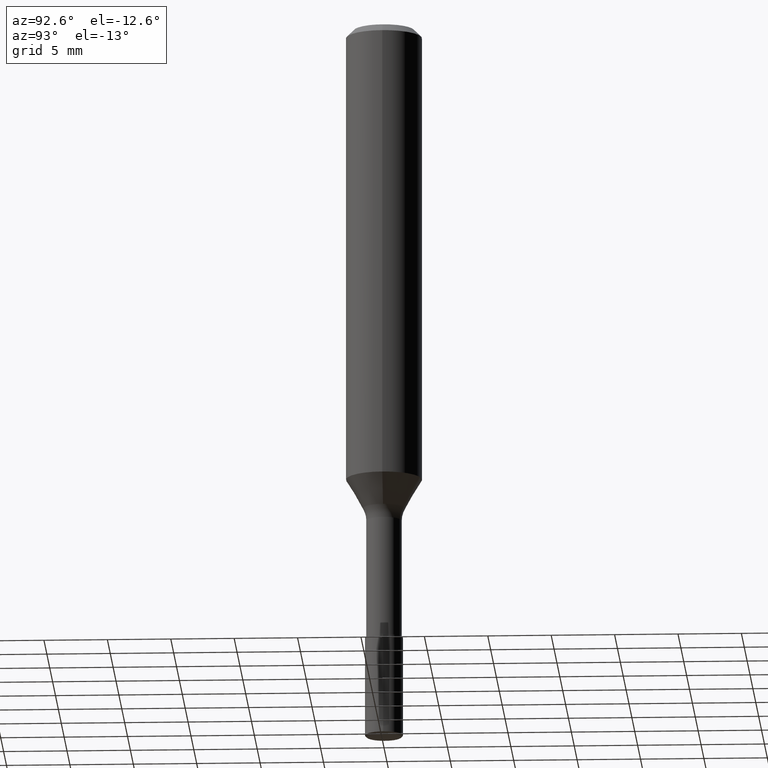
[diagram: clean part render]
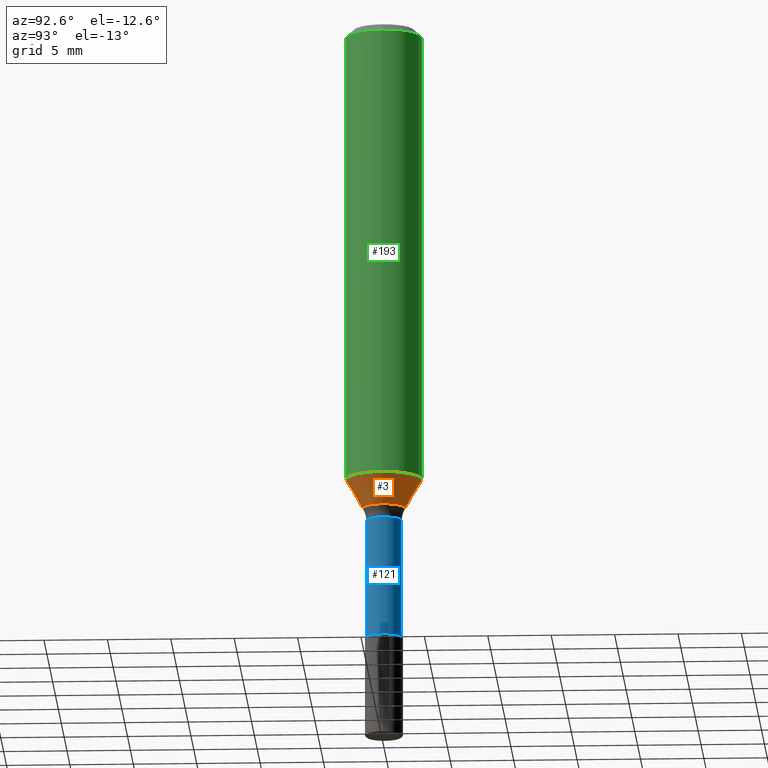
[diagram: same view with three faces highlighted in distinct colors, each labeled with its STEP entity id]
A machine part, auxiliary view with three faces highlighted in distinct colors.
Their STEP definitions:

[orange] entity #3 — the highlighted conical surface has half-angle 30 deg.
#3 = ADVANCED_FACE ( 'NONE', ( #23, #49 ), #6, .T. ) ;
#4 = VERTEX_POINT ( 'NONE', #155 ) ;
#5 = DIRECTION ( 'NONE',  ( 6.982962677686266711E-15, 0.0000000000000000000, 1.000000000000000000 ) ) ;
#6 = CONICAL_SURFACE ( 'NONE', #217, 1.667949192431122274, 0.5235987755983003700 ) ;
#16 = ORIENTED_EDGE ( 'NONE', *, *, #232, .F. ) ;
#19 = CIRCLE ( 'NONE', #263, 1.667949192431122274 ) ;
#23 = FACE_OUTER_BOUND ( 'NONE', #83, .T. ) ;
#49 = FACE_BOUND ( 'NONE', #135, .T. ) ;
#83 = EDGE_LOOP ( 'NONE', ( #112 ) ) ;
#108 = EDGE_CURVE ( 'NONE', #4, #4, #197, .T. ) ;
#111 = DIRECTION ( 'NONE',  ( 6.982962677686266711E-15, 0.0000000000000000000, 1.000000000000000000 ) ) ;
#112 = ORIENTED_EDGE ( 'NONE', *, *, #108, .F. ) ;
#135 = EDGE_LOOP ( 'NONE', ( #16 ) ) ;
#137 = CARTESIAN_POINT ( 'NONE',  ( -2.690947401726035711E-13, 0.0000000000000000000, -38.53589838486225005 ) ) ;
#138 = VERTEX_POINT ( 'NONE', #175 ) ;
#155 = CARTESIAN_POINT ( 'NONE',  ( 2.999999999999764633, 0.0000000000000000000, -36.22871870788980431 ) ) ;
#156 = DIRECTION ( 'NONE',  ( -6.982962677686266711E-15, 0.0000000000000000000, -1.000000000000000000 ) ) ;
#175 = CARTESIAN_POINT ( 'NONE',  ( -1.667949192431391392, 0.0000000000000000000, -38.53589838486223584 ) ) ;
#197 = CIRCLE ( 'NONE', #240, 3.000000000000017319 ) ;
#206 = DIRECTION ( 'NONE',  ( 1.000000000000000000, 0.0000000000000000000, -6.938893903907188146E-15 ) ) ;
#217 = AXIS2_PLACEMENT_3D ( 'NONE', #244, #5, #225 ) ;
#225 = DIRECTION ( 'NONE',  ( 1.000000000000000000, 0.0000000000000000000, -8.320270108220061374E-15 ) ) ;
#229 = CARTESIAN_POINT ( 'NONE',  ( -2.529837905975886012E-13, 0.0000000000000000000, -36.22871870788978299 ) ) ;
#232 = EDGE_CURVE ( 'NONE', #138, #138, #19, .T. ) ;
#240 = AXIS2_PLACEMENT_3D ( 'NONE', #229, #111, #206 ) ;
#244 = CARTESIAN_POINT ( 'NONE',  ( -2.690947401726035711E-13, 0.0000000000000000000, -38.53589838486225005 ) ) ;
#260 = DIRECTION ( 'NONE',  ( -1.000000000000000000, 0.0000000000000000000, 8.320270108220061374E-15 ) ) ;
#263 = AXIS2_PLACEMENT_3D ( 'NONE', #137, #156, #260 ) ;

[blue] entity #121 — the highlighted cylindrical surface (bore or boss wall) has radius 1.4 mm, axis along (-0, 0, -1).
#34 = FACE_OUTER_BOUND ( 'NONE', #151, .T. ) ;
#36 = CYLINDRICAL_SURFACE ( 'NONE', #72, 1.400000000000000133 ) ;
#57 = AXIS2_PLACEMENT_3D ( 'NONE', #203, #60, #146 ) ;
#60 = DIRECTION ( 'NONE',  ( -6.982962677686266711E-15, 0.0000000000000000000, -1.000000000000000000 ) ) ;
#62 = FACE_OUTER_BOUND ( 'NONE', #86, .T. ) ;
#63 = ORIENTED_EDGE ( 'NONE', *, *, #262, .F. ) ;
#72 = AXIS2_PLACEMENT_3D ( 'NONE', #162, #251, #166 ) ;
#86 = EDGE_LOOP ( 'NONE', ( #63 ) ) ;
#95 = AXIS2_PLACEMENT_3D ( 'NONE', #178, #243, #124 ) ;
#109 = ORIENTED_EDGE ( 'NONE', *, *, #168, .T. ) ;
#121 = ADVANCED_FACE ( 'NONE', ( #34, #62 ), #36, .T. ) ;
#124 = DIRECTION ( 'NONE',  ( -1.000000000000000000, 0.0000000000000000000, 4.956352788505163465E-15 ) ) ;
#140 = VERTEX_POINT ( 'NONE', #196 ) ;
#146 = DIRECTION ( 'NONE',  ( -1.000000000000000000, 0.0000000000000000000, 4.956352788505162676E-15 ) ) ;
#151 = EDGE_LOOP ( 'NONE', ( #109 ) ) ;
#162 = CARTESIAN_POINT ( 'NONE',  ( 0.0000000000000000000, 0.0000000000000000000, 0.0000000000000000000 ) ) ;
#166 = DIRECTION ( 'NONE',  ( -1.000000000000000000, 0.0000000000000000000, 6.982962677686267499E-15 ) ) ;
#168 = EDGE_CURVE ( 'NONE', #239, #239, #188, .T. ) ;
#174 = CARTESIAN_POINT ( 'NONE',  ( -1.400000000000276135, 0.0000000000000000000, -39.53589838486224295 ) ) ;
#178 = CARTESIAN_POINT ( 'NONE',  ( -3.421651712066269931E-13, 0.0000000000000000000, -48.99999999999998579 ) ) ;
#188 = CIRCLE ( 'NONE', #57, 1.400000000000000133 ) ;
#196 = CARTESIAN_POINT ( 'NONE',  ( -1.400000000000342082, 0.0000000000000000000, -48.99999999999997868 ) ) ;
#203 = CARTESIAN_POINT ( 'NONE',  ( -2.760777028502898631E-13, 0.0000000000000000000, -39.53589838486225005 ) ) ;
#239 = VERTEX_POINT ( 'NONE', #174 ) ;
#243 = DIRECTION ( 'NONE',  ( -6.982962677686266711E-15, 0.0000000000000000000, -1.000000000000000000 ) ) ;
#251 = DIRECTION ( 'NONE',  ( -6.982962677686266711E-15, 0.0000000000000000000, -1.000000000000000000 ) ) ;
#258 = CIRCLE ( 'NONE', #95, 1.399999999999999911 ) ;
#262 = EDGE_CURVE ( 'NONE', #140, #140, #258, .T. ) ;

[green] entity #193 — the highlighted cylindrical surface (bore or boss wall) has radius 3 mm, axis along (0, 0, 1).
#2 = VERTEX_POINT ( 'NONE', #264 ) ;
#4 = VERTEX_POINT ( 'NONE', #155 ) ;
#7 = ORIENTED_EDGE ( 'NONE', *, *, #171, .F. ) ;
#41 = FACE_OUTER_BOUND ( 'NONE', #252, .T. ) ;
#61 = EDGE_LOOP ( 'NONE', ( #209 ) ) ;
#82 = DIRECTION ( 'NONE',  ( 1.000000000000000000, 0.0000000000000000000, -6.975033976323412122E-15 ) ) ;
#89 = DIRECTION ( 'NONE',  ( 6.982962677686266711E-15, 0.0000000000000000000, 1.000000000000000000 ) ) ;
#108 = EDGE_CURVE ( 'NONE', #4, #4, #197, .T. ) ;
#111 = DIRECTION ( 'NONE',  ( 6.982962677686266711E-15, 0.0000000000000000000, 1.000000000000000000 ) ) ;
#133 = CARTESIAN_POINT ( 'NONE',  ( -3.980288726281171773E-13, 0.0000000000000000000, -56.99999999999999289 ) ) ;
#148 = CARTESIAN_POINT ( 'NONE',  ( -4.189777606611783692E-15, 0.0000000000000000000, -0.6000000000000033085 ) ) ;
#155 = CARTESIAN_POINT ( 'NONE',  ( 2.999999999999764633, 0.0000000000000000000, -36.22871870788980431 ) ) ;
#171 = EDGE_CURVE ( 'NONE', #2, #2, #207, .T. ) ;
#186 = DIRECTION ( 'NONE',  ( 1.000000000000000000, 0.0000000000000000000, -6.938893903907188146E-15 ) ) ;
#191 = AXIS2_PLACEMENT_3D ( 'NONE', #148, #231, #82 ) ;
#193 = ADVANCED_FACE ( 'NONE', ( #41, #282 ), #213, .T. ) ;
#197 = CIRCLE ( 'NONE', #240, 3.000000000000017319 ) ;
#206 = DIRECTION ( 'NONE',  ( 1.000000000000000000, 0.0000000000000000000, -6.938893903907188146E-15 ) ) ;
#207 = CIRCLE ( 'NONE', #191, 3.000000000000000000 ) ;
#209 = ORIENTED_EDGE ( 'NONE', *, *, #108, .T. ) ;
#213 = CYLINDRICAL_SURFACE ( 'NONE', #272, 3.000000000000017319 ) ;
#229 = CARTESIAN_POINT ( 'NONE',  ( -2.529837905975886012E-13, 0.0000000000000000000, -36.22871870788978299 ) ) ;
#231 = DIRECTION ( 'NONE',  ( 6.982962677686266711E-15, 0.0000000000000000000, 1.000000000000000000 ) ) ;
#240 = AXIS2_PLACEMENT_3D ( 'NONE', #229, #111, #206 ) ;
#252 = EDGE_LOOP ( 'NONE', ( #7 ) ) ;
#264 = CARTESIAN_POINT ( 'NONE',  ( 2.999999999999995559, 0.0000000000000000000, -0.6000000000000241807 ) ) ;
#272 = AXIS2_PLACEMENT_3D ( 'NONE', #133, #89, #186 ) ;
#282 = FACE_OUTER_BOUND ( 'NONE', #61, .T. ) ;